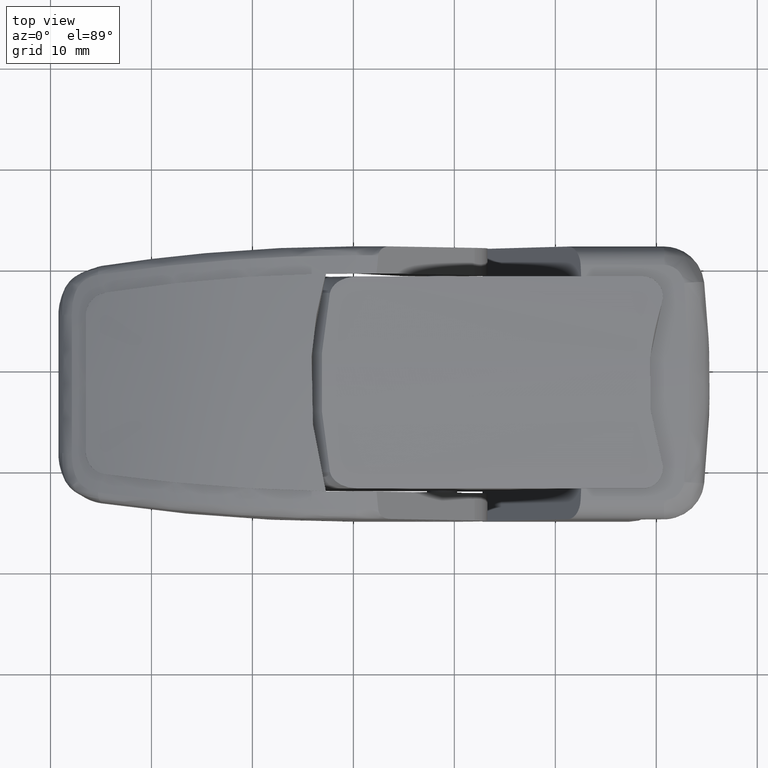
[diagram: clean part render]
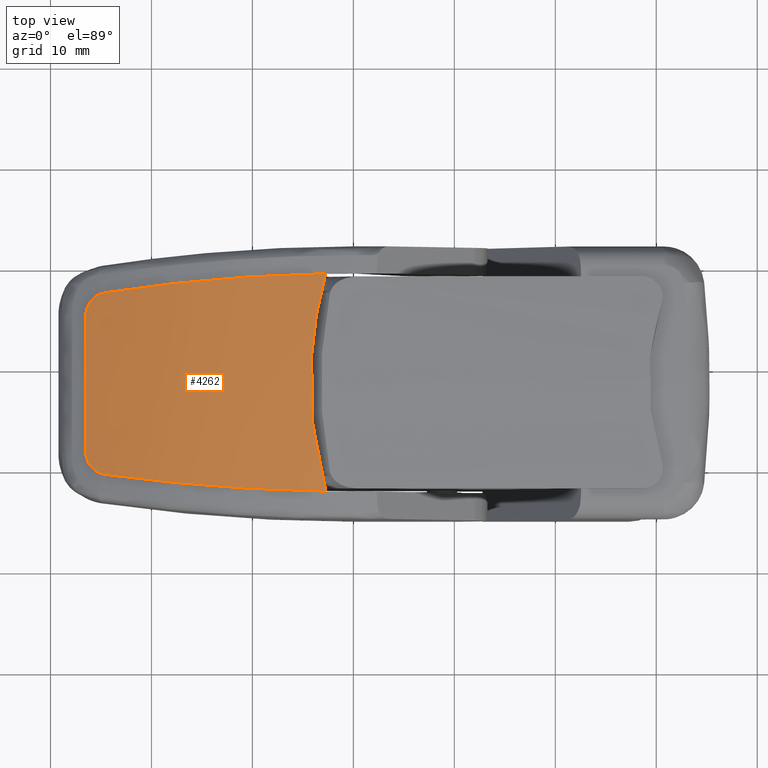
[diagram: same view with one face highlighted and labeled with its STEP entity id]
A machine part, top view. The second image highlights one B-rep face of the part: STEP entity #4262.
In plain terms, the highlighted face is a freeform B-spline surface patch.
Its self-contained STEP definition (entity closure, byte-faithful):
#97=B_SPLINE_CURVE_WITH_KNOTS('',3,(#6959,#6960,#6961,#6962,#6963,#6964,
#6965,#6966,#6967,#6968,#6969,#6970,#6971,#6972,#6973,#6974,#6975,#6976,
#6977,#6978,#6979,#6980,#6981,#6982,#6983,#6984,#6985,#6986,#6987,#6988,
#6989,#6990,#6991,#6992,#6993,#6994,#6995,#6996,#6997,#6998,#6999,#7000,
#7001,#7002,#7003,#7004,#7005,#7006,#7007,#7008,#7009,#7010,#7011,#7012,
#7013),.UNSPECIFIED.,.F.,.F.,(4,3,3,3,3,3,3,3,3,3,3,3,3,3,3,3,3,3,4),(-2.29646229536262,
-2.10604907568092,-1.91367650114973,-1.81746420866089,-1.62508684483116,
-1.52897008407977,-1.3370150055415,-1.2412332633829,-1.14826566319177,-1.09788154285861,
-1.05018795745879,-0.954757362211218,-0.907010667003248,-0.763680381845945,
-0.668081716205933,-0.476888683636531,-0.381349239776514,-0.190463855448656,
-3.53413106891104E-7),.UNSPECIFIED.);
#98=B_SPLINE_CURVE_WITH_KNOTS('',3,(#7015,#7016,#7017,#7018,#7019,#7020,
#7021,#7022,#7023,#7024,#7025,#7026),.UNSPECIFIED.,.F.,.F.,(4,2,2,2,2,4),
(-0.348088131825869,-0.263937480216079,-0.173993508501974,-0.0869781431052583,
-0.0435924317364495,-2.21627883557285E-5),.UNSPECIFIED.);
#99=B_SPLINE_CURVE_WITH_KNOTS('',3,(#7028,#7029,#7030,#7031,#7032,#7033),
 .UNSPECIFIED.,.F.,.F.,(4,2,4),(-1.34667199326714,-0.673345786831407,-1.95804037026517E-5),
 .UNSPECIFIED.);
#100=B_SPLINE_CURVE_WITH_KNOTS('',3,(#7035,#7036,#7037,#7038,#7039,#7040,
#7041,#7042,#7043,#7044,#7045,#7046),.UNSPECIFIED.,.F.,.F.,(4,2,2,2,2,4),
(-0.349693046464047,-0.305959294227881,-0.262410734920222,-0.175032017070179,
-0.0846799371021922,-0.000150934663399908),.UNSPECIFIED.);
#101=B_SPLINE_CURVE_WITH_KNOTS('',3,(#7048,#7049,#7050,#7051,#7052,#7053,
#7054,#7055,#7056,#7057,#7058,#7059,#7060,#7061,#7062,#7063,#7064,#7065,
#7066,#7067,#7068,#7069,#7070,#7071,#7072,#7073,#7074,#7075,#7076,#7077,
#7078,#7079,#7080,#7081,#7082,#7083,#7084,#7085,#7086,#7087,#7088,#7089,
#7090,#7091,#7092,#7093,#7094,#7095,#7096),.UNSPECIFIED.,.F.,.F.,(4,3,3,
3,3,3,3,3,3,3,3,3,3,3,3,3,4),(-2.29850915735185,-2.10797119801108,-1.91707069352354,
-1.82151769327153,-1.63027319493511,-1.53460869897914,-1.3910972699764,
-1.34326299859715,-1.24760893958429,-1.19979253876712,-1.14920532305738,
-1.05629743262882,-0.960443436504721,-0.76833577351002,-0.672132206805045,
-0.383228235048716,0.),.UNSPECIFIED.);
#102=B_SPLINE_CURVE_WITH_KNOTS('',3,(#7097,#7098,#7099,#7100,#7101,#7102,
#7103,#7104,#7105,#7106,#7107,#7108,#7109,#7110,#7111,#7112,#7113,#7114,
#7115,#7116,#7117,#7118,#7119,#7120,#7121,#7122,#7123,#7124,#7125,#7126,
#7127,#7128,#7129,#7130,#7131,#7132,#7133,#7134,#7135,#7136,#7137,#7138,
#7139),.UNSPECIFIED.,.F.,.F.,(4,3,3,3,3,3,3,3,3,3,3,3,3,3,4),(-2.18786515017562,
-2.00428264649312,-1.82079704213806,-1.63767398359794,-1.45478480082198,
-1.27221016135004,-1.25225562886126,-1.13037721777428,-0.947881877145577,
-0.765206504291986,-0.575048617396172,-0.391738182362451,-0.208243690974235,
-0.0246518542049878,-0.00457495670873167),.UNSPECIFIED.);
#167=B_SPLINE_SURFACE_WITH_KNOTS('',3,3,((#6941,#6942,#6943,#6944),(#6945,
#6946,#6947,#6948),(#6949,#6950,#6951,#6952),(#6953,#6954,#6955,#6956)),
 .UNSPECIFIED.,.F.,.F.,.F.,(4,4),(4,4),(0.0276441837227562,0.243182725509977),
(0.0666663980258543,0.569668293675375),.UNSPECIFIED.);
#451=FACE_OUTER_BOUND('',#730,.T.);
#730=EDGE_LOOP('',(#3126,#3127,#3128,#3129,#3130,#3131));
#1933=VERTEX_POINT('',#6957);
#1934=VERTEX_POINT('',#6958);
#1935=VERTEX_POINT('',#7014);
#1936=VERTEX_POINT('',#7027);
#1937=VERTEX_POINT('',#7034);
#1938=VERTEX_POINT('',#7047);
#2387=EDGE_CURVE('',#1933,#1934,#97,.T.);
#2388=EDGE_CURVE('',#1934,#1935,#98,.T.);
#2389=EDGE_CURVE('',#1935,#1936,#99,.T.);
#2390=EDGE_CURVE('',#1936,#1937,#100,.T.);
#2391=EDGE_CURVE('',#1937,#1938,#101,.T.);
#2392=EDGE_CURVE('',#1938,#1933,#102,.T.);
#3126=ORIENTED_EDGE('',*,*,#2387,.T.);
#3127=ORIENTED_EDGE('',*,*,#2388,.T.);
#3128=ORIENTED_EDGE('',*,*,#2389,.T.);
#3129=ORIENTED_EDGE('',*,*,#2390,.T.);
#3130=ORIENTED_EDGE('',*,*,#2391,.T.);
#3131=ORIENTED_EDGE('',*,*,#2392,.T.);
#4262=ADVANCED_FACE('',(#451),#167,.F.);
#6941=CARTESIAN_POINT('Ctrl Pts',(-35.3446837778819,5.46361736134197,10.7734983228381));
#6942=CARTESIAN_POINT('Ctrl Pts',(-28.216099173591,9.96459297080415,10.7734983228381));
#6943=CARTESIAN_POINT('Ctrl Pts',(-19.9397613210807,12.6311266514979,10.7734983228381));
#6944=CARTESIAN_POINT('Ctrl Pts',(-11.5243969722065,13.1382191215701,10.7734983228381));
#6945=CARTESIAN_POINT('Ctrl Pts',(-35.2922088631632,6.2365008391735,3.61906180657462));
#6946=CARTESIAN_POINT('Ctrl Pts',(-28.0339298666611,10.728672089279,3.61906180657462));
#6947=CARTESIAN_POINT('Ctrl Pts',(-19.630597641684,13.3532184336518,3.61906180657462));
#6948=CARTESIAN_POINT('Ctrl Pts',(-11.1058471326335,13.7900768658465,3.61906180657462));
#6949=CARTESIAN_POINT('Ctrl Pts',(-35.2922088593164,6.23650089590582,-3.61906023094956));
#6950=CARTESIAN_POINT('Ctrl Pts',(-28.0339298533021,10.7286721453663,-3.61906023094956));
#6951=CARTESIAN_POINT('Ctrl Pts',(-19.6305976189885,13.3532184866534,-3.61906023094956));
#6952=CARTESIAN_POINT('Ctrl Pts',(-11.1058471019149,13.7900769136975,-3.61906023094956));
#6953=CARTESIAN_POINT('Ctrl Pts',(-35.3446837664146,5.46361753023836,-10.7734967593958));
#6954=CARTESIAN_POINT('Ctrl Pts',(-28.2160991338054,9.96459313777786,-10.7734967593958));
#6955=CARTESIAN_POINT('Ctrl Pts',(-19.9397612535,12.6311268092825,-10.7734967593958));
#6956=CARTESIAN_POINT('Ctrl Pts',(-11.5243968807418,13.138219264019,-10.7734967593958));
#6957=CARTESIAN_POINT('',(-11.5243973773297,13.1382192346688,-10.7734967524449));
#6958=CARTESIAN_POINT('',(-33.3308840512583,6.83236536310373,-9.00452920585145));
#6959=CARTESIAN_POINT('Ctrl Pts',(-11.5243973774272,13.1382192340328,-10.7734967600465));
#6960=CARTESIAN_POINT('Ctrl Pts',(-12.1587129740008,13.1009819621535,-10.7622476135668));
#6961=CARTESIAN_POINT('Ctrl Pts',(-12.7920531351913,13.0517804814388,-10.7476524420368));
#6962=CARTESIAN_POINT('Ctrl Pts',(-13.4240123458941,12.9907800665038,-10.7296391863455));
#6963=CARTESIAN_POINT('Ctrl Pts',(-14.0624744262308,12.9291519563961,-10.7114405739865));
#6964=CARTESIAN_POINT('Ctrl Pts',(-14.6995267718561,12.8554808271597,-10.6897533891669));
#6965=CARTESIAN_POINT('Ctrl Pts',(-15.3347507026496,12.7699253744268,-10.6646039744226));
#6966=CARTESIAN_POINT('Ctrl Pts',(-15.6524485386033,12.7271360825415,-10.6520258673135));
#6967=CARTESIAN_POINT('Ctrl Pts',(-15.9696889928061,12.6813740910191,-10.6385813977103));
#6968=CARTESIAN_POINT('Ctrl Pts',(-16.2864196340291,12.6326587961764,-10.6242761712868));
#6969=CARTESIAN_POINT('Ctrl Pts',(-16.9197254645668,12.5352521160363,-10.595672739468));
#6970=CARTESIAN_POINT('Ctrl Pts',(-17.5509929592576,12.426038140352,-10.5636290290907));
#6971=CARTESIAN_POINT('Ctrl Pts',(-18.1798061370736,12.3051613615497,-10.5282799515564));
#6972=CARTESIAN_POINT('Ctrl Pts',(-18.4939776412791,12.244768162489,-10.5106186282046));
#6973=CARTESIAN_POINT('Ctrl Pts',(-18.8075364951508,12.1814635902416,-10.4921319772725));
#6974=CARTESIAN_POINT('Ctrl Pts',(-19.120430807561,12.1152655555948,-10.4728348518606));
#6975=CARTESIAN_POINT('Ctrl Pts',(-19.7453130012943,11.9830612569857,-10.4342965033452));
#6976=CARTESIAN_POINT('Ctrl Pts',(-20.3675447966188,11.839316689902,-10.3925266175409));
#6977=CARTESIAN_POINT('Ctrl Pts',(-20.9867124838674,11.6841730142788,-10.3476365952979));
#6978=CARTESIAN_POINT('Ctrl Pts',(-21.2956647669983,11.6067594253848,-10.3252373726845));
#6979=CARTESIAN_POINT('Ctrl Pts',(-21.6038541281715,11.5265076573548,-10.3020610218253));
#6980=CARTESIAN_POINT('Ctrl Pts',(-21.9112290415777,11.4434351374204,-10.2781200350327));
#6981=CARTESIAN_POINT('Ctrl Pts',(-22.2095730413247,11.3628033526347,-10.2548824530243));
#6982=CARTESIAN_POINT('Ctrl Pts',(-22.5071497533454,11.2795141233965,-10.2309245822501));
#6983=CARTESIAN_POINT('Ctrl Pts',(-22.8039119639386,11.1935833213816,-10.2062572151287));
#6984=CARTESIAN_POINT('Ctrl Pts',(-22.9647432954791,11.1470128187534,-10.192888648114));
#6985=CARTESIAN_POINT('Ctrl Pts',(-23.1253301972062,11.0996679552857,-10.1793121000269));
#6986=CARTESIAN_POINT('Ctrl Pts',(-23.2856651413403,11.0515514243202,-10.1655291574264));
#6987=CARTESIAN_POINT('Ctrl Pts',(-23.4374381265601,11.0060043379847,-10.1524822302273));
#6988=CARTESIAN_POINT('Ctrl Pts',(-23.588985337746,10.959765811298,-10.1392502403984));
#6989=CARTESIAN_POINT('Ctrl Pts',(-23.7403004325616,10.9128380299123,-10.1258354305326));
#6990=CARTESIAN_POINT('Ctrl Pts',(-24.0430683928049,10.8189397399485,-10.0989935967744));
#6991=CARTESIAN_POINT('Ctrl Pts',(-24.3449070685082,10.7222818793616,-10.071420320853));
#6992=CARTESIAN_POINT('Ctrl Pts',(-24.6457660147297,10.6228811609711,-10.0431400739244));
#6993=CARTESIAN_POINT('Ctrl Pts',(-24.7962944733289,10.5731480979829,-10.0289906459867));
#6994=CARTESIAN_POINT('Ctrl Pts',(-24.9465776768935,10.5227284158955,-10.0146642354582));
#6995=CARTESIAN_POINT('Ctrl Pts',(-25.0966092994867,10.4716242068167,-10.0001637744492));
#6996=CARTESIAN_POINT('Ctrl Pts',(-25.546987595937,10.3182150372797,-9.95663499822133));
#6997=CARTESIAN_POINT('Ctrl Pts',(-25.995098839826,10.1586373828107,-9.91153810188093));
#6998=CARTESIAN_POINT('Ctrl Pts',(-26.4407717484182,9.99294750638643,-9.86495089302741));
#6999=CARTESIAN_POINT('Ctrl Pts',(-26.7380273865171,9.88243540436391,-9.83387808104353));
#7000=CARTESIAN_POINT('Ctrl Pts',(-27.0341982885005,9.76920418609729,-9.80214218676018));
#7001=CARTESIAN_POINT('Ctrl Pts',(-27.3292334949476,9.65327054198638,-9.76976488124703));
#7002=CARTESIAN_POINT('Ctrl Pts',(-27.9192906412238,9.4214084668623,-9.70501172610577));
#7003=CARTESIAN_POINT('Ctrl Pts',(-28.5048053339586,9.17873715255414,-9.6376940386047));
#7004=CARTESIAN_POINT('Ctrl Pts',(-29.0853691973277,8.92538903603083,-9.56798373373948));
#7005=CARTESIAN_POINT('Ctrl Pts',(-29.375477826738,8.79879060391049,-9.53314939030849));
#7006=CARTESIAN_POINT('Ctrl Pts',(-29.6643501934278,8.66952616525255,-9.49771730129432));
#7007=CARTESIAN_POINT('Ctrl Pts',(-29.951934865036,8.53761276387493,-9.46170357784188));
#7008=CARTESIAN_POINT('Ctrl Pts',(-30.5265217408729,8.27405313548881,-9.38974907230414));
#7009=CARTESIAN_POINT('Ctrl Pts',(-31.0959683157915,7.99991916887965,-9.3154735552957));
#7010=CARTESIAN_POINT('Ctrl Pts',(-31.6598717028817,7.71533269246832,-9.23911528204251));
#7011=CARTESIAN_POINT('Ctrl Pts',(-32.2225287878812,7.43137519032577,-9.16292577081095));
#7012=CARTESIAN_POINT('Ctrl Pts',(-32.7796672218405,7.13701122605687,-9.08466291766985));
#7013=CARTESIAN_POINT('Ctrl Pts',(-33.3308836021523,6.83236453333426,-9.00452927114185));
#7014=CARTESIAN_POINT('',(-35.3,5.83062664317378,-6.7284545665199));
#7015=CARTESIAN_POINT('Ctrl Pts',(-33.330883602152,6.83236453333461,-9.00452927113977));
#7016=CARTESIAN_POINT('Ctrl Pts',(-33.5754543241866,6.69719497084129,-8.96897488381087));
#7017=CARTESIAN_POINT('Ctrl Pts',(-33.8157437401343,6.56500453616335,-8.89378653653871));
#7018=CARTESIAN_POINT('Ctrl Pts',(-34.2827576059506,6.31066017094006,-8.65660473015083));
#7019=CARTESIAN_POINT('Ctrl Pts',(-34.5063468324424,6.19040789473818,-8.48947289927302));
#7020=CARTESIAN_POINT('Ctrl Pts',(-34.8824521558458,5.99447754717635,-8.07808352426323));
#7021=CARTESIAN_POINT('Ctrl Pts',(-35.0339865691594,5.91912879616399,-7.83972609312972));
#7022=CARTESIAN_POINT('Ctrl Pts',(-35.1916513664776,5.85013642078846,-7.44053315607001));
#7023=CARTESIAN_POINT('Ctrl Pts',(-35.2319234975821,5.83476506826622,-7.30237054463024));
#7024=CARTESIAN_POINT('Ctrl Pts',(-35.2863032931461,5.8202768605215,-7.01803558296716));
#7025=CARTESIAN_POINT('Ctrl Pts',(-35.3000000002666,5.82131076589766,-6.87338887586678));
#7026=CARTESIAN_POINT('Ctrl Pts',(-35.3,5.83062664290621,-6.7284545665027));
#7027=CARTESIAN_POINT('',(-35.3,5.830626643054,6.72845456651994));
#7028=CARTESIAN_POINT('Ctrl Pts',(-35.3,5.83062664290619,-6.7284545665027));
#7029=CARTESIAN_POINT('Ctrl Pts',(-35.3,5.97459316197091,-4.48865595535049));
#7030=CARTESIAN_POINT('Ctrl Pts',(-35.3,6.04659322557422,-2.24441630539233));
#7031=CARTESIAN_POINT('Ctrl Pts',(-35.3,6.04659322550716,2.24441630544474));
#7032=CARTESIAN_POINT('Ctrl Pts',(-35.3,5.97459316183851,4.48865595537661));
#7033=CARTESIAN_POINT('Ctrl Pts',(-35.3,5.83062664278643,6.72845456650274));
#7034=CARTESIAN_POINT('',(-33.3308840512579,6.83236536302454,9.00452920585158));
#7035=CARTESIAN_POINT('Ctrl Pts',(-35.3,5.83062664278641,6.72845456650274));
#7036=CARTESIAN_POINT('Ctrl Pts',(-35.3000000002665,5.82131530281941,6.8733182896106));
#7037=CARTESIAN_POINT('Ctrl Pts',(-35.2863166284066,5.82027783953311,7.0178950858369));
#7038=CARTESIAN_POINT('Ctrl Pts',(-35.2319891738353,5.83474306403598,7.30209751297365));
#7039=CARTESIAN_POINT('Ctrl Pts',(-35.1917553476591,5.85009528269648,7.44019958854574));
#7040=CARTESIAN_POINT('Ctrl Pts',(-35.0341924685287,5.91902996153796,7.8393455152704));
#7041=CARTESIAN_POINT('Ctrl Pts',(-34.8827103194032,5.99434700184662,8.07772125396362));
#7042=CARTESIAN_POINT('Ctrl Pts',(-34.5066312896668,6.19025563646009,8.48924422778224));
#7043=CARTESIAN_POINT('Ctrl Pts',(-34.282993409693,6.31053249766438,8.65645941807263));
#7044=CARTESIAN_POINT('Ctrl Pts',(-33.81586637067,6.56493704819453,8.89374814636111));
#7045=CARTESIAN_POINT('Ctrl Pts',(-33.575516773769,6.69716045607027,8.96896580522375));
#7046=CARTESIAN_POINT('Ctrl Pts',(-33.3308836021516,6.83236453325535,9.00452927113993));
#7047=CARTESIAN_POINT('',(-11.5243969669856,13.1382191221583,10.7734983213935));
#7048=CARTESIAN_POINT('Ctrl Pts',(-33.3308836021519,6.83236453325501,9.00452927114199));
#7049=CARTESIAN_POINT('Ctrl Pts',(-32.7798883904265,7.1368889897689,9.0846307650599));
#7050=CARTESIAN_POINT('Ctrl Pts',(-32.2226767558515,7.43114725807494,9.16290573443929));
#7051=CARTESIAN_POINT('Ctrl Pts',(-31.6598717028797,7.71500978224376,9.23911528204384));
#7052=CARTESIAN_POINT('Ctrl Pts',(-31.0959957754151,7.99941242440716,9.31546983698297));
#7053=CARTESIAN_POINT('Ctrl Pts',(-30.5265047949624,8.27337972389611,9.38975119440873));
#7054=CARTESIAN_POINT('Ctrl Pts',(-29.9519348650288,8.53678138383749,9.46170357784642));
#7055=CARTESIAN_POINT('Ctrl Pts',(-29.6643406504031,8.66862398397269,9.49771849635704));
#7056=CARTESIAN_POINT('Ctrl Pts',(-29.3754736412515,8.79781948443657,9.5331498928858));
#7057=CARTESIAN_POINT('Ctrl Pts',(-29.0853691973081,8.92435154546627,9.56798373375171));
#7058=CARTESIAN_POINT('Ctrl Pts',(-28.5047398219793,9.17759906748312,9.63770190486055));
#7059=CARTESIAN_POINT('Ctrl Pts',(-27.9191544746196,9.42017738424181,9.70502666907099));
#7060=CARTESIAN_POINT('Ctrl Pts',(-27.329233494869,9.65195549323247,9.76976488129595));
#7061=CARTESIAN_POINT('Ctrl Pts',(-27.0341426887407,9.76789574857627,9.80214828837675));
#7062=CARTESIAN_POINT('Ctrl Pts',(-26.7379667794787,9.88113356563552,9.83388441656477));
#7063=CARTESIAN_POINT('Ctrl Pts',(-26.4407717482045,9.99165254738264,9.86495089316038));
#7064=CARTESIAN_POINT('Ctrl Pts',(-25.9949335800893,10.157447985324,9.91155537694262));
#7065=CARTESIAN_POINT('Ctrl Pts',(-25.5468020280559,10.3171247916768,9.95665293312656));
#7066=CARTESIAN_POINT('Ctrl Pts',(-25.0966092993125,10.470627609481,10.0001637745575));
#7067=CARTESIAN_POINT('Ctrl Pts',(-24.9465540646227,10.5217921438694,10.0146665177286));
#7068=CARTESIAN_POINT('Ctrl Pts',(-24.7962698151627,10.5722707618875,10.0289929640873));
#7069=CARTESIAN_POINT('Ctrl Pts',(-24.6457660142876,10.6220614136467,10.0431400741994));
#7070=CARTESIAN_POINT('Ctrl Pts',(-24.3448039836041,10.7216276410467,10.071430010818));
#7071=CARTESIAN_POINT('Ctrl Pts',(-24.0429640345363,10.8184428365859,10.0990028480906));
#7072=CARTESIAN_POINT('Ctrl Pts',(-23.7403004308067,10.9124906086027,10.125835431624));
#7073=CARTESIAN_POINT('Ctrl Pts',(-23.5890022596883,10.9595040444059,10.1392487418634));
#7074=CARTESIAN_POINT('Ctrl Pts',(-23.437498272756,11.0058259317991,10.1524770628311));
#7075=CARTESIAN_POINT('Ctrl Pts',(-23.2856651365713,11.0514542231905,10.1655291603925));
#7076=CARTESIAN_POINT('Ctrl Pts',(-23.1250337322666,11.099726535193,10.1793375872819));
#7077=CARTESIAN_POINT('Ctrl Pts',(-22.9640339138366,11.1472225386479,10.19294877731));
#7078=CARTESIAN_POINT('Ctrl Pts',(-22.8026807761388,11.1939398089831,10.2063595490633));
#7079=CARTESIAN_POINT('Ctrl Pts',(-22.50634148513,11.2797402028678,10.2309896160701));
#7080=CARTESIAN_POINT('Ctrl Pts',(-22.2091630467522,11.3629079759479,10.2549143970304));
#7081=CARTESIAN_POINT('Ctrl Pts',(-21.911228936339,11.4434266297478,10.2781201004859));
#7082=CARTESIAN_POINT('Ctrl Pts',(-21.60384734654,11.5264985270179,10.3020616559214));
#7083=CARTESIAN_POINT('Ctrl Pts',(-21.2956613532267,11.6067506343164,10.3252378164416));
#7084=CARTESIAN_POINT('Ctrl Pts',(-20.9867121752776,11.6841648333747,10.3476367872253));
#7085=CARTESIAN_POINT('Ctrl Pts',(-20.3675256315775,11.8393160160594,10.3925281230561));
#7086=CARTESIAN_POINT('Ctrl Pts',(-19.7452752808347,11.9830681849227,10.434298421241));
#7087=CARTESIAN_POINT('Ctrl Pts',(-19.1204295564299,12.1152754853794,10.4728356300012));
#7088=CARTESIAN_POINT('Ctrl Pts',(-18.8075196683441,12.1814821824477,10.4921342715847));
#7089=CARTESIAN_POINT('Ctrl Pts',(-18.4939584838851,12.2447936569397,10.5106219479972));
#7090=CARTESIAN_POINT('Ctrl Pts',(-18.1798027329402,12.3051915916366,10.5282820687558));
#7091=CARTESIAN_POINT('Ctrl Pts',(-17.2363777924035,12.4865695157349,10.5813162670047));
#7092=CARTESIAN_POINT('Ctrl Pts',(-16.2875955490272,12.6416722639402,10.6268925789454));
#7093=CARTESIAN_POINT('Ctrl Pts',(-15.3346980872044,12.7700037621476,10.6646373036132));
#7094=CARTESIAN_POINT('Ctrl Pts',(-14.0706891147534,12.9402342136717,10.7147053041633));
#7095=CARTESIAN_POINT('Ctrl Pts',(-12.7994305835364,13.0633586223376,10.7510019661991));
#7096=CARTESIAN_POINT('Ctrl Pts',(-11.5243969722065,13.13821912157,10.7734983228381));
#7097=CARTESIAN_POINT('Ctrl Pts',(-11.5243969565465,13.1382191228942,10.7734983184948));
#7098=CARTESIAN_POINT('Ctrl Pts',(-11.6907520076072,13.1797447127614,10.1849440154683));
#7099=CARTESIAN_POINT('Ctrl Pts',(-11.843368770255,13.2173508956962,9.59272416965131));
#7100=CARTESIAN_POINT('Ctrl Pts',(-11.9821891410948,13.2512413010837,8.99738879300255));
#7101=CARTESIAN_POINT('Ctrl Pts',(-12.1209362391537,13.2851138182879,8.40236764890015));
#7102=CARTESIAN_POINT('Ctrl Pts',(-12.2459018508549,13.3152743503902,7.80423361297672));
#7103=CARTESIAN_POINT('Ctrl Pts',(-12.3570066158196,13.3418860541821,7.20351700384856));
#7104=CARTESIAN_POINT('Ctrl Pts',(-12.4678918509323,13.3684451764003,6.60398733956749));
#7105=CARTESIAN_POINT('Ctrl Pts',(-12.5649711578154,13.3914693823385,6.00188459346154));
#7106=CARTESIAN_POINT('Ctrl Pts',(-12.6481403151463,13.4110825784768,5.39772734219622));
#7107=CARTESIAN_POINT('Ctrl Pts',(-12.7312032529199,13.4306707256056,4.79434169085906));
#7108=CARTESIAN_POINT('Ctrl Pts',(-12.800391602182,13.4468565170125,4.18890603374444));
#7109=CARTESIAN_POINT('Ctrl Pts',(-12.8555743604266,13.4597262853831,3.58193922975579));
#7110=CARTESIAN_POINT('Ctrl Pts',(-12.9106622121992,13.4725739195881,2.97601632208215));
#7111=CARTESIAN_POINT('Ctrl Pts',(-12.9517924994657,13.4821169105863,2.36856675528467));
#7112=CARTESIAN_POINT('Ctrl Pts',(-12.978808188829,13.488404673472,1.76012036242291));
#7113=CARTESIAN_POINT('Ctrl Pts',(-12.9817608741125,13.4890918958,1.69362008971715));
#7114=CARTESIAN_POINT('Ctrl Pts',(-12.9845449156044,13.4897400402301,1.62710792077187));
#7115=CARTESIAN_POINT('Ctrl Pts',(-12.9871601084206,13.4903493562297,1.56058457775057));
#7116=CARTESIAN_POINT('Ctrl Pts',(-13.0031331985096,13.494070940081,1.15427291135651));
#7117=CARTESIAN_POINT('Ctrl Pts',(-13.012807605116,13.4963440942131,0.747544391795602));
#7118=CARTESIAN_POINT('Ctrl Pts',(-13.0161906768248,13.4971653987467,0.340562115305061));
#7119=CARTESIAN_POINT('Ctrl Pts',(-13.0212563387281,13.4983951838191,-0.26883513984114));
#7120=CARTESIAN_POINT('Ctrl Pts',(-13.0122100369777,13.4963715912904,-0.877873622482065));
#7121=CARTESIAN_POINT('Ctrl Pts',(-12.9891879081129,13.4910903130053,-1.48601800255727));
#7122=CARTESIAN_POINT('Ctrl Pts',(-12.9661430678459,13.4858038247227,-2.09476231896741));
#7123=CARTESIAN_POINT('Ctrl Pts',(-12.9290949832783,13.4772532102046,-2.70261152934199));
#7124=CARTESIAN_POINT('Ctrl Pts',(-12.878155223567,13.4653977372148,-3.30904637827981));
#7125=CARTESIAN_POINT('Ctrl Pts',(-12.825128934832,13.4530566555645,-3.94032123275307));
#7126=CARTESIAN_POINT('Ctrl Pts',(-12.7570498393368,13.437134730832,-4.57006429137633));
#7127=CARTESIAN_POINT('Ctrl Pts',(-12.6740135665775,13.417544044482,-5.19769701226946));
#7128=CARTESIAN_POINT('Ctrl Pts',(-12.5939673716415,13.398658804979,-5.80272911999031));
#7129=CARTESIAN_POINT('Ctrl Pts',(-12.5000214780074,13.3763640898999,-6.40580086069439));
#7130=CARTESIAN_POINT('Ctrl Pts',(-12.3922355978422,13.3505428559647,-7.00638902999802));
#7131=CARTESIAN_POINT('Ctrl Pts',(-12.2843414931989,13.3246956957249,-7.6075802313602));
#7132=CARTESIAN_POINT('Ctrl Pts',(-12.1625793002722,13.2953150347187,-8.20628353874495));
#7133=CARTESIAN_POINT('Ctrl Pts',(-12.0269867670427,13.2622445761185,-8.80195881754966));
#7134=CARTESIAN_POINT('Ctrl Pts',(-11.8913223008264,13.2291565733601,-9.39795010713238));
#7135=CARTESIAN_POINT('Ctrl Pts',(-11.7418123775009,13.1923749924304,-9.99091075925593));
#7136=CARTESIAN_POINT('Ctrl Pts',(-11.5784781627186,13.1517025744378,-10.5802748558667));
#7137=CARTESIAN_POINT('Ctrl Pts',(-11.5606165608875,13.1472547951611,-10.6447254478094));
#7138=CARTESIAN_POINT('Ctrl Pts',(-11.54258962529,13.1427604449453,-10.709132999677));
#7139=CARTESIAN_POINT('Ctrl Pts',(-11.52439737538,13.138219235152,-10.7734967486778));